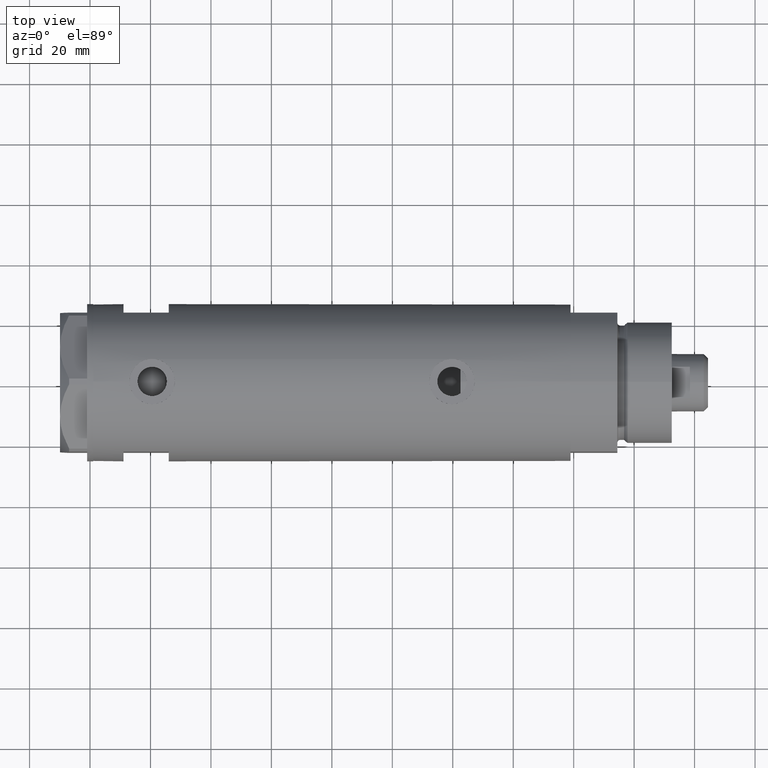
[diagram: clean part render]
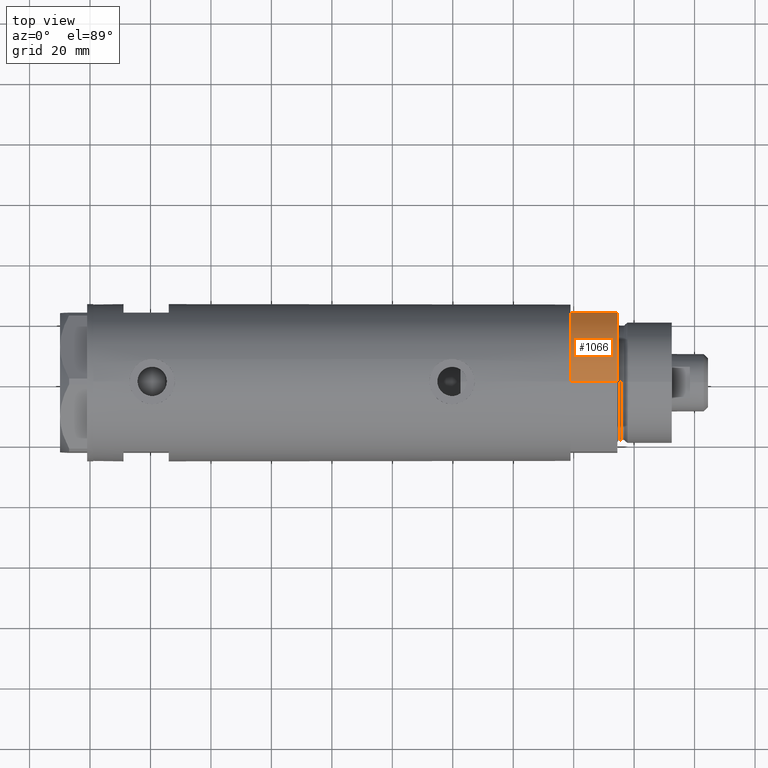
[diagram: same view with one face highlighted and labeled with its STEP entity id]
A machine part, top view. The second image highlights one B-rep face of the part: STEP entity #1066.
In plain terms, the highlighted cylindrical surface (partial cylindrical patch) has radius 26 mm, axis along (-1, -0, 0).
Its self-contained STEP definition (entity closure, byte-faithful):
#280 = ORIENTED_EDGE ( 'NONE', *, *, #5521, .F. ) ;
#661 = ORIENTED_EDGE ( 'NONE', *, *, #2878, .T. ) ;
#893 = DIRECTION ( 'NONE',  ( 1.000000000000000000, 0.000000000000000000, 0.000000000000000000 ) ) ;
#915 = CIRCLE ( 'NONE', #1719, 26.00000000000000355 ) ;
#920 = CARTESIAN_POINT ( 'NONE',  ( -26.00000000000000355, 0.000000000000000000, 15.50000000000000000 ) ) ;
#951 = EDGE_CURVE ( 'NONE', #3741, #1982, #2278, .T. ) ;
#1066 = ADVANCED_FACE ( 'NONE', ( #5183 ), #1828, .T. ) ;
#1357 = ORIENTED_EDGE ( 'NONE', *, *, #6102, .F. ) ;
#1373 = DIRECTION ( 'NONE',  ( 0.000000000000000000, 0.000000000000000000, 1.000000000000000000 ) ) ;
#1594 = EDGE_LOOP ( 'NONE', ( #2949, #1357, #280, #661 ) ) ;
#1719 = AXIS2_PLACEMENT_3D ( 'NONE', #2277, #5803, #3713 ) ;
#1828 = CYLINDRICAL_SURFACE ( 'NONE', #3749, 26.00000000000000355 ) ;
#1893 = CARTESIAN_POINT ( 'NONE',  ( 0.000000000000000000, 0.000000000000000000, 15.50000000000000000 ) ) ;
#1949 = AXIS2_PLACEMENT_3D ( 'NONE', #3812, #1373, #893 ) ;
#1982 = VERTEX_POINT ( 'NONE', #5712 ) ;
#2055 = CARTESIAN_POINT ( 'NONE',  ( -12.12435565298214613, 23.00000000000000355, 15.50000000000000000 ) ) ;
#2277 = CARTESIAN_POINT ( 'NONE',  ( 0.000000000000000000, 0.000000000000000000, 0.000000000000000000 ) ) ;
#2278 = LINE ( 'NONE', #2902, #6095 ) ;
#2878 = EDGE_CURVE ( 'NONE', #3325, #1982, #915, .T. ) ;
#2902 = CARTESIAN_POINT ( 'NONE',  ( -26.00000000000000355, 0.000000000000000000, 15.50000000000000000 ) ) ;
#2949 = ORIENTED_EDGE ( 'NONE', *, *, #951, .F. ) ;
#3269 = DIRECTION ( 'NONE',  ( -1.000000000000000000, 0.000000000000000000, 0.000000000000000000 ) ) ;
#3325 = VERTEX_POINT ( 'NONE', #6126 ) ;
#3646 = CARTESIAN_POINT ( 'NONE',  ( -12.12435565298215145, 23.00000000000000355, 0.000000000000000000 ) ) ;
#3713 = DIRECTION ( 'NONE',  ( 1.000000000000000000, 0.000000000000000000, 0.000000000000000000 ) ) ;
#3741 = VERTEX_POINT ( 'NONE', #920 ) ;
#3744 = DIRECTION ( 'NONE',  ( -0.000000000000000000, -0.000000000000000000, -1.000000000000000000 ) ) ;
#3749 = AXIS2_PLACEMENT_3D ( 'NONE', #1893, #3744, #3269 ) ;
#3812 = CARTESIAN_POINT ( 'NONE',  ( 0.000000000000000000, 0.000000000000000000, 15.50000000000000000 ) ) ;
#3851 = DIRECTION ( 'NONE',  ( -0.000000000000000000, -0.000000000000000000, -1.000000000000000000 ) ) ;
#4598 = VECTOR ( 'NONE', #5153, 1000.000000000000000 ) ;
#4702 = CIRCLE ( 'NONE', #1949, 26.00000000000000355 ) ;
#5153 = DIRECTION ( 'NONE',  ( -0.000000000000000000, -0.000000000000000000, 1.000000000000000000 ) ) ;
#5183 = FACE_OUTER_BOUND ( 'NONE', #1594, .T. ) ;
#5521 = EDGE_CURVE ( 'NONE', #3325, #6199, #6083, .T. ) ;
#5712 = CARTESIAN_POINT ( 'NONE',  ( -26.00000000000000355, 0.000000000000000000, 0.000000000000000000 ) ) ;
#5803 = DIRECTION ( 'NONE',  ( 0.000000000000000000, 0.000000000000000000, 1.000000000000000000 ) ) ;
#6083 = LINE ( 'NONE', #3646, #4598 ) ;
#6095 = VECTOR ( 'NONE', #3851, 1000.000000000000000 ) ;
#6102 = EDGE_CURVE ( 'NONE', #6199, #3741, #4702, .T. ) ;
#6126 = CARTESIAN_POINT ( 'NONE',  ( -12.12435565298215145, 23.00000000000000355, 0.000000000000000000 ) ) ;
#6199 = VERTEX_POINT ( 'NONE', #2055 ) ;